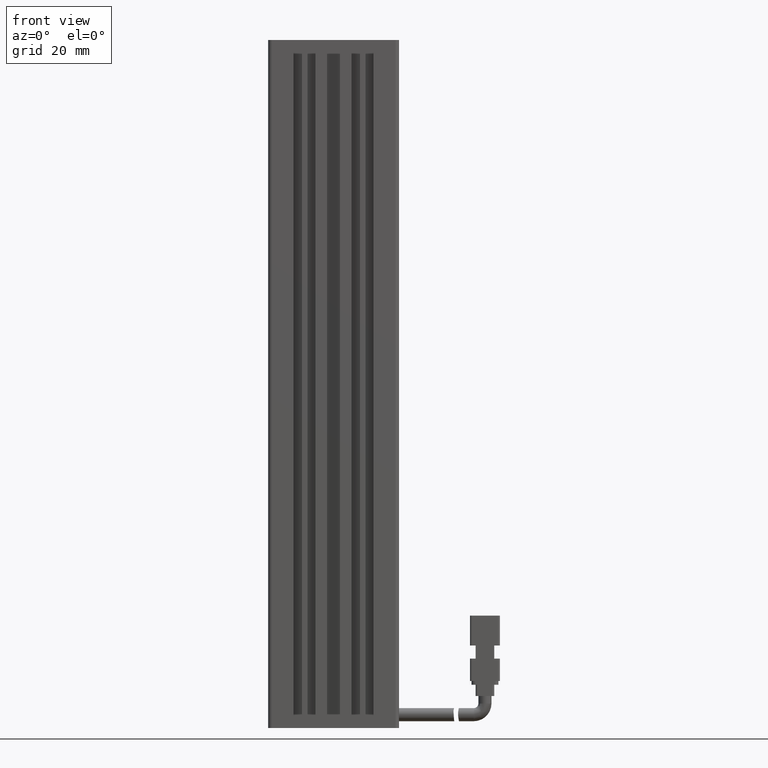
[diagram: clean part render]
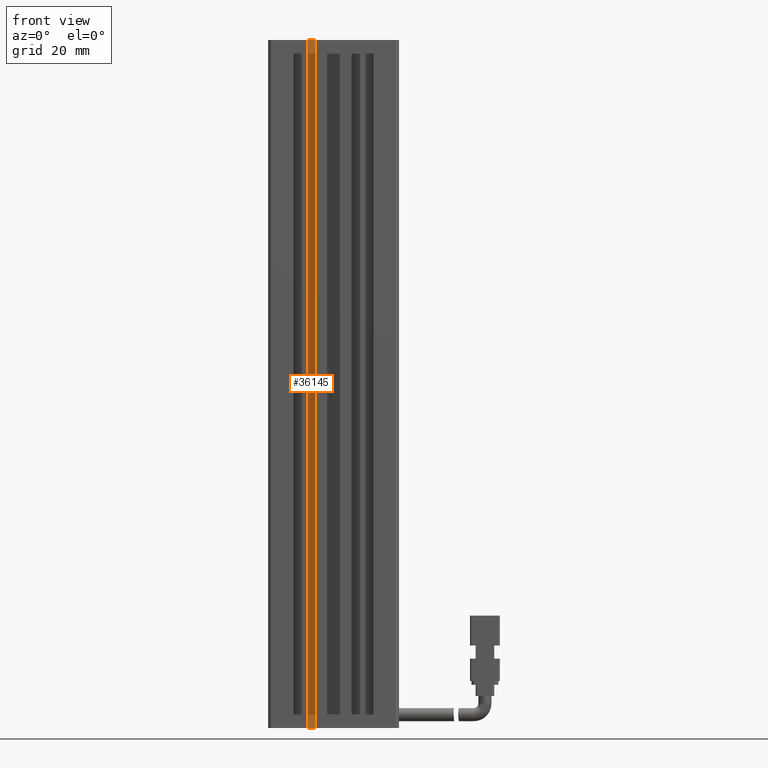
[diagram: same view with one face highlighted and labeled with its STEP entity id]
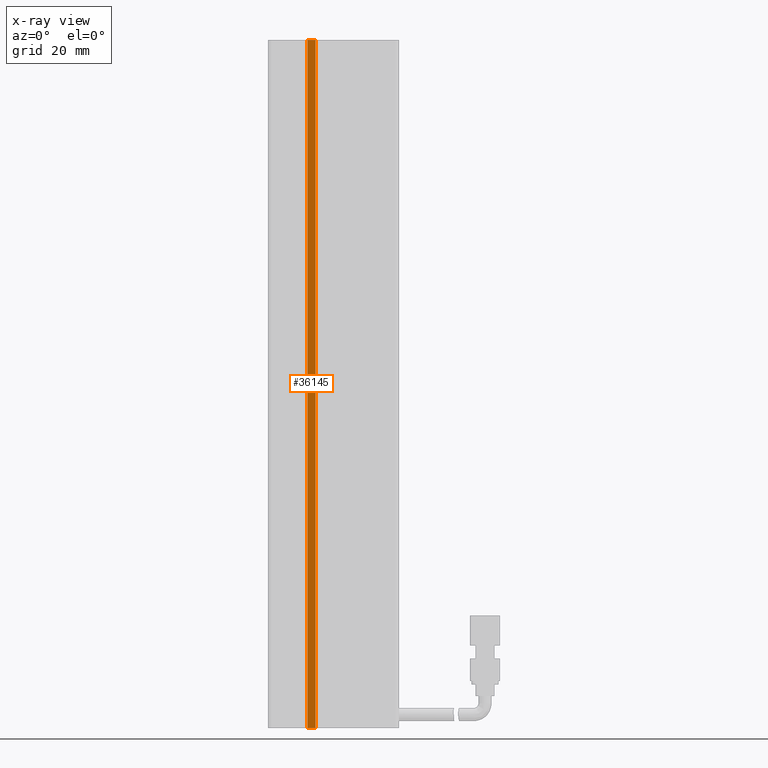
[diagram: x-ray of the same camera — body ghosted, the highlighted face saturated]
A machine part, front view. The second image highlights one B-rep face of the part: STEP entity #36145.
The next image is the same camera in x-ray: the body ghosted, the highlighted face saturated — about 0% of this face is hidden behind the body in this view.
In plain terms, the highlighted planar face has unit normal (-0, 1, 0).
Its self-contained STEP definition (entity closure, byte-faithful):
#46 = FACE_OUTER_BOUND ( 'NONE', #45339, .T. ) ;
#682 = VECTOR ( 'NONE', #69447, 1000.000000000000000 ) ;
#4279 = CARTESIAN_POINT ( 'NONE',  ( 33.92537974683543200, 16.49073232304837000, -207.0000000000000300 ) ) ;
#4851 = VERTEX_POINT ( 'NONE', #4279 ) ;
#6493 = EDGE_CURVE ( 'NONE', #4851, #22069, #40373, .T. ) ;
#6867 = VERTEX_POINT ( 'NONE', #65173 ) ;
#12847 = PLANE ( 'NONE',  #22204 ) ;
#15229 = CARTESIAN_POINT ( 'NONE',  ( 36.12537974683543500, 16.49073232304837000, -23.00000000000000700 ) ) ;
#18387 = CARTESIAN_POINT ( 'NONE',  ( 40.92537974683542500, 16.49073232304836600, -207.0000000000000300 ) ) ;
#20707 = CARTESIAN_POINT ( 'NONE',  ( 40.92537974683542500, 16.49073232304836600, -23.00000000000000700 ) ) ;
#22069 = VERTEX_POINT ( 'NONE', #39941 ) ;
#22188 = LINE ( 'NONE', #18387, #70807 ) ;
#22204 = AXIS2_PLACEMENT_3D ( 'NONE', #24025, #73806, #42431 ) ;
#23472 = LINE ( 'NONE', #20707, #682 ) ;
#24025 = CARTESIAN_POINT ( 'NONE',  ( 40.92537974683541800, 16.49073232304837300, -23.00000000000000700 ) ) ;
#25941 = EDGE_CURVE ( 'NONE', #58105, #6867, #54297, .T. ) ;
#30476 = EDGE_CURVE ( 'NONE', #4851, #6867, #22188, .T. ) ;
#30978 = CARTESIAN_POINT ( 'NONE',  ( 36.12537974683543500, 16.49073232304837000, -23.00000000000000700 ) ) ;
#36145 = ADVANCED_FACE ( 'NONE', ( #46 ), #12847, .F. ) ;
#36414 = ORIENTED_EDGE ( 'NONE', *, *, #25941, .F. ) ;
#38130 = VECTOR ( 'NONE', #70113, 1000.000000000000000 ) ;
#39941 = CARTESIAN_POINT ( 'NONE',  ( 33.92537974683543200, 16.49073232304837000, -23.00000000000000700 ) ) ;
#40373 = LINE ( 'NONE', #73471, #58439 ) ;
#42431 = DIRECTION ( 'NONE',  ( -1.000000000000000000, -7.885106708985485100E-016, 0.0000000000000000000 ) ) ;
#45339 = EDGE_LOOP ( 'NONE', ( #36414, #66975, #65480, #65607 ) ) ;
#54297 = LINE ( 'NONE', #15229, #38130 ) ;
#58105 = VERTEX_POINT ( 'NONE', #30978 ) ;
#58439 = VECTOR ( 'NONE', #72422, 1000.000000000000000 ) ;
#65173 = CARTESIAN_POINT ( 'NONE',  ( 36.12537974683543500, 16.49073232304837000, -207.0000000000000300 ) ) ;
#65480 = ORIENTED_EDGE ( 'NONE', *, *, #6493, .F. ) ;
#65607 = ORIENTED_EDGE ( 'NONE', *, *, #30476, .T. ) ;
#66902 = DIRECTION ( 'NONE',  ( 1.000000000000000000, 0.0000000000000000000, 0.0000000000000000000 ) ) ;
#66975 = ORIENTED_EDGE ( 'NONE', *, *, #77865, .F. ) ;
#69447 = DIRECTION ( 'NONE',  ( 1.000000000000000000, 0.0000000000000000000, 0.0000000000000000000 ) ) ;
#70113 = DIRECTION ( 'NONE',  ( -0.0000000000000000000, -0.0000000000000000000, -1.000000000000000000 ) ) ;
#70807 = VECTOR ( 'NONE', #66902, 1000.000000000000000 ) ;
#72422 = DIRECTION ( 'NONE',  ( 0.0000000000000000000, 0.0000000000000000000, 1.000000000000000000 ) ) ;
#73471 = CARTESIAN_POINT ( 'NONE',  ( 33.92537974683543200, 16.49073232304837000, -23.00000000000000700 ) ) ;
#73806 = DIRECTION ( 'NONE',  ( -7.885106708985485100E-016, 1.000000000000000000, 0.0000000000000000000 ) ) ;
#77865 = EDGE_CURVE ( 'NONE', #22069, #58105, #23472, .T. ) ;